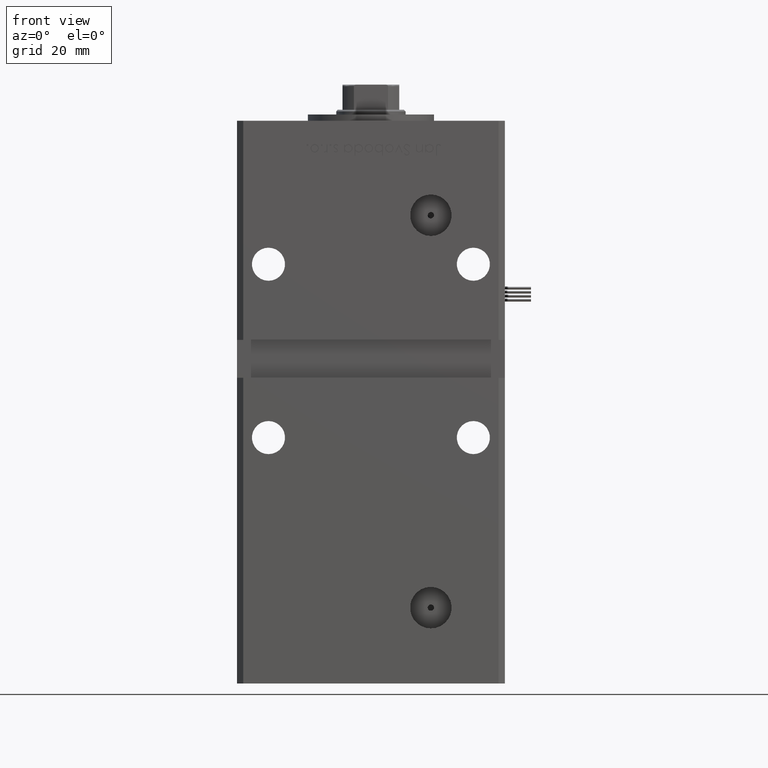
[diagram: clean part render]
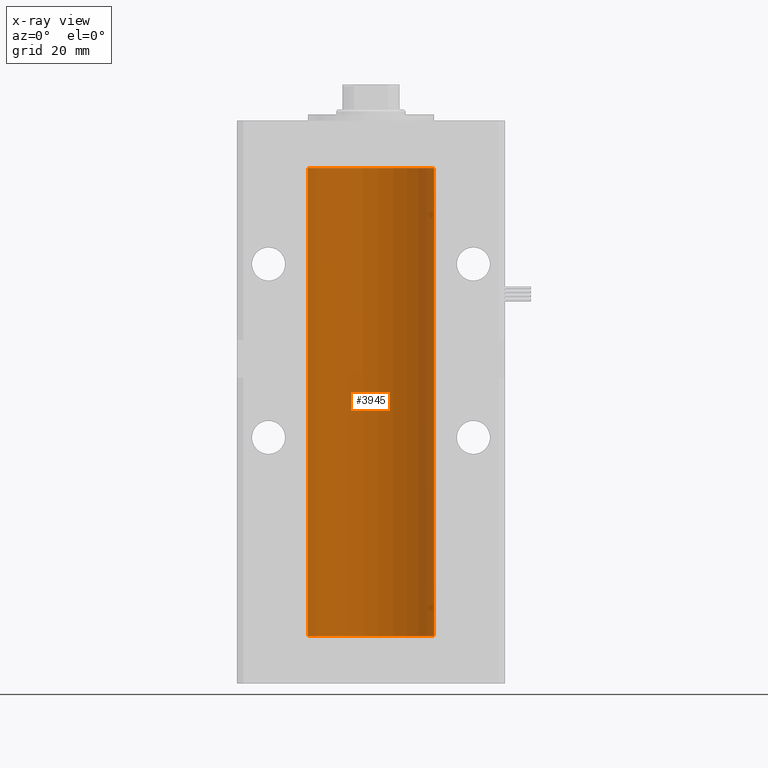
[diagram: x-ray — body ghosted, one internal face saturated and labeled with its STEP entity id]
A machine part, front view, then the same camera in x-ray: the body is ghosted and one INTERNAL B-rep face — a face not visible from any outside direction — is saturated and labeled: STEP entity #3945.
In plain terms, the highlighted cylindrical surface (partial cylindrical patch) has radius 20 mm, axis along (-0, -0, -1).
Its self-contained STEP definition (entity closure, byte-faithful):
#1797 = DIRECTION ( 'NONE',  ( -0.000000000000000000, 0.000000000000000000, 1.000000000000000000 ) ) ;
#2074 = CARTESIAN_POINT ( 'NONE',  ( 0.000000000000000000, 0.000000000000000000, 148.5000000000000000 ) ) ;
#3260 = ORIENTED_EDGE ( 'NONE', *, *, #4498, .T. ) ;
#3945 = ADVANCED_FACE ( 'NONE', ( #18258 ), #9738, .F. ) ;
#4498 = EDGE_CURVE ( 'NONE', #35288, #39901, #24893, .T. ) ;
#4650 = DIRECTION ( 'NONE',  ( -0.000000000000000000, -0.000000000000000000, -1.000000000000000000 ) ) ;
#5246 = VECTOR ( 'NONE', #11633, 1000.000000000000000 ) ;
#9738 = CYLINDRICAL_SURFACE ( 'NONE', #21078, 20.00000000000000000 ) ;
#10520 = DIRECTION ( 'NONE',  ( 1.000000000000000000, 0.000000000000000000, 0.000000000000000000 ) ) ;
#11633 = DIRECTION ( 'NONE',  ( -0.000000000000000000, -0.000000000000000000, -1.000000000000000000 ) ) ;
#14050 = CIRCLE ( 'NONE', #26721, 20.00000000000000000 ) ;
#15240 = AXIS2_PLACEMENT_3D ( 'NONE', #2074, #1797, #40683 ) ;
#18188 = CARTESIAN_POINT ( 'NONE',  ( -20.00000000000000000, 0.000000000000000000, 0.000000000000000000 ) ) ;
#18258 = FACE_OUTER_BOUND ( 'NONE', #55143, .T. ) ;
#21078 = AXIS2_PLACEMENT_3D ( 'NONE', #43543, #4650, #21964 ) ;
#21964 = DIRECTION ( 'NONE',  ( -1.000000000000000000, 0.000000000000000000, 0.000000000000000000 ) ) ;
#24893 = LINE ( 'NONE', #34539, #35591 ) ;
#25848 = VERTEX_POINT ( 'NONE', #45452 ) ;
#26721 = AXIS2_PLACEMENT_3D ( 'NONE', #53691, #44604, #10520 ) ;
#33223 = LINE ( 'NONE', #50556, #5246 ) ;
#34539 = CARTESIAN_POINT ( 'NONE',  ( -20.00000000000000000, 0.000000000000000000, 148.5000000000000000 ) ) ;
#35039 = CARTESIAN_POINT ( 'NONE',  ( 20.00000000000000000, 2.449293598294706513E-15, 148.5000000000000000 ) ) ;
#35191 = CIRCLE ( 'NONE', #15240, 20.00000000000000000 ) ;
#35288 = VERTEX_POINT ( 'NONE', #44330 ) ;
#35591 = VECTOR ( 'NONE', #47326, 1000.000000000000000 ) ;
#37304 = ORIENTED_EDGE ( 'NONE', *, *, #50650, .F. ) ;
#39901 = VERTEX_POINT ( 'NONE', #18188 ) ;
#40683 = DIRECTION ( 'NONE',  ( 1.000000000000000000, 0.000000000000000000, 0.000000000000000000 ) ) ;
#41496 = ORIENTED_EDGE ( 'NONE', *, *, #44156, .F. ) ;
#43543 = CARTESIAN_POINT ( 'NONE',  ( 0.000000000000000000, 0.000000000000000000, 148.5000000000000000 ) ) ;
#44156 = EDGE_CURVE ( 'NONE', #25848, #39901, #14050, .T. ) ;
#44330 = CARTESIAN_POINT ( 'NONE',  ( -20.00000000000000000, 0.000000000000000000, 148.5000000000000000 ) ) ;
#44565 = ORIENTED_EDGE ( 'NONE', *, *, #51706, .T. ) ;
#44604 = DIRECTION ( 'NONE',  ( -0.000000000000000000, 0.000000000000000000, 1.000000000000000000 ) ) ;
#45452 = CARTESIAN_POINT ( 'NONE',  ( 20.00000000000000000, 2.449293598294706513E-15, 0.000000000000000000 ) ) ;
#47326 = DIRECTION ( 'NONE',  ( -0.000000000000000000, -0.000000000000000000, -1.000000000000000000 ) ) ;
#50556 = CARTESIAN_POINT ( 'NONE',  ( 20.00000000000000000, 2.449293598294706513E-15, 148.5000000000000000 ) ) ;
#50650 = EDGE_CURVE ( 'NONE', #51064, #25848, #33223, .T. ) ;
#51064 = VERTEX_POINT ( 'NONE', #35039 ) ;
#51706 = EDGE_CURVE ( 'NONE', #51064, #35288, #35191, .T. ) ;
#53691 = CARTESIAN_POINT ( 'NONE',  ( 0.000000000000000000, 0.000000000000000000, 0.000000000000000000 ) ) ;
#55143 = EDGE_LOOP ( 'NONE', ( #37304, #44565, #3260, #41496 ) ) ;